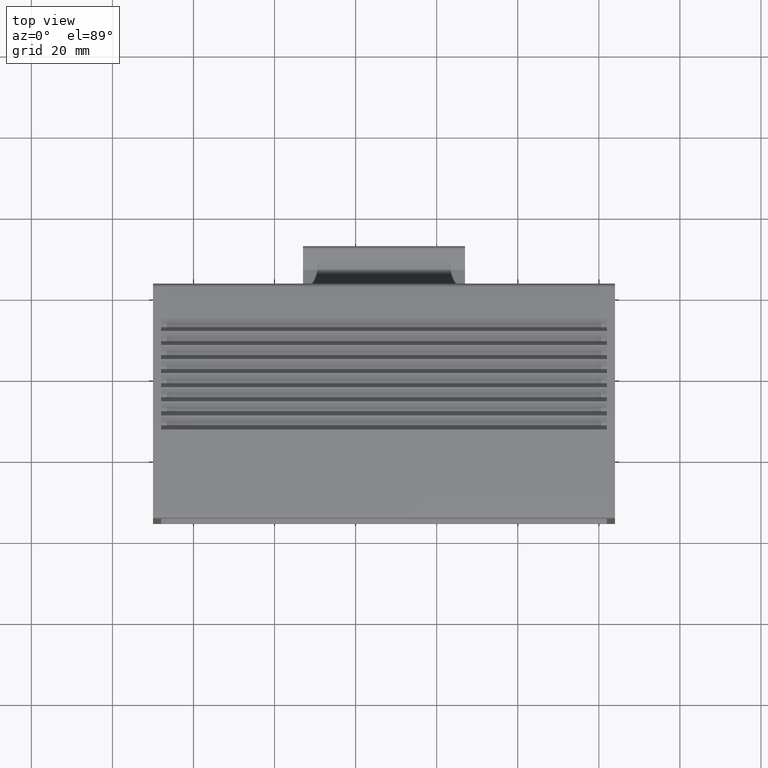
[diagram: clean part render]
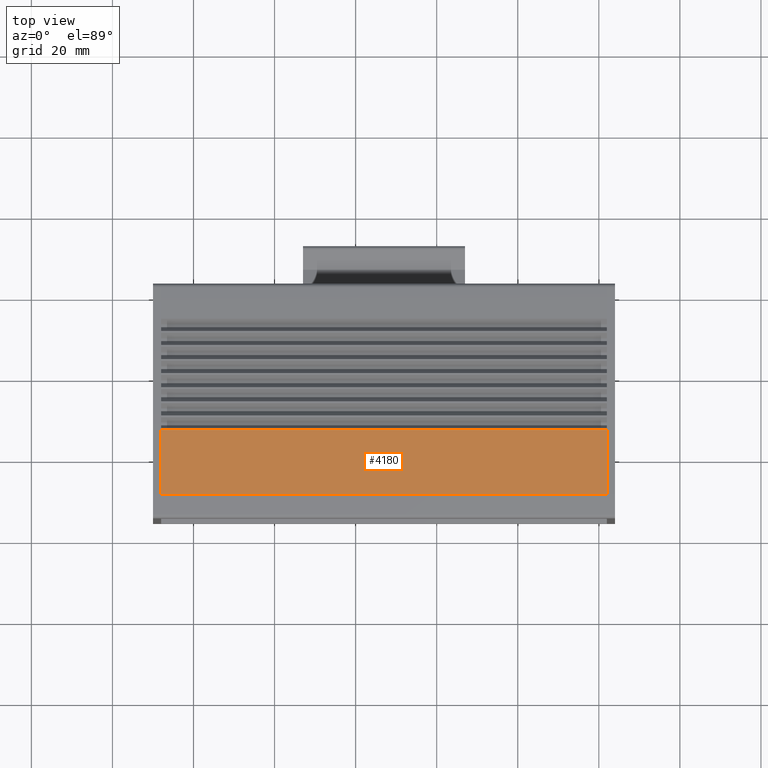
[diagram: same view with one face highlighted and labeled with its STEP entity id]
A machine part, top view. The second image highlights one B-rep face of the part: STEP entity #4180.
In plain terms, the highlighted cylindrical surface (partial cylindrical patch) has radius 400 mm, axis along (-1, -0, 0).
Its self-contained STEP definition (entity closure, byte-faithful):
#2142=CARTESIAN_POINT('',(-49.957093014422568,-4.589066365486417,109.500000000000000));
#2143=VERTEX_POINT('',#2142);
#2150=CARTESIAN_POINT('',(-65.906152948224928,-4.907158484696884,109.500000000000000));
#2151=VERTEX_POINT('',#2150);
#2152=CARTESIAN_POINT('',(-49.957093014422590,-404.589066365486420,109.500000000000000));
#2153=DIRECTION('',(0.0,0.0,-1.0));
#2154=DIRECTION('',(1.0,0.0,0.0));
#2155=AXIS2_PLACEMENT_3D('',#2152,#2153,#2154);
#2156=CIRCLE('',#2155,400.0);
#2157=EDGE_CURVE('',#2151,#2143,#2156,.T.);
#2823=CARTESIAN_POINT('',(-65.906152948224928,-4.907158484696884,-0.500000000000000));
#2824=VERTEX_POINT('',#2823);
#2831=CARTESIAN_POINT('',(-49.957093014422568,-4.589066365486417,-0.500000000000000));
#2832=VERTEX_POINT('',#2831);
#2833=CARTESIAN_POINT('',(-49.957093014422590,-404.589066365486420,-0.500000000000000));
#2834=DIRECTION('',(0.0,0.0,-1.0));
#2835=DIRECTION('',(1.0,0.0,0.0));
#2836=AXIS2_PLACEMENT_3D('',#2833,#2834,#2835);
#2837=CIRCLE('',#2836,400.0);
#2838=EDGE_CURVE('',#2824,#2832,#2837,.T.);
#3293=CARTESIAN_POINT('',(-49.957093014422568,-4.589066365486417,-0.500000000000000));
#3294=DIRECTION('',(0.0,0.0,1.0));
#3295=VECTOR('',#3294,110.0);
#3296=LINE('',#3293,#3295);
#3297=EDGE_CURVE('',#2832,#2143,#3296,.T.);
#3783=CARTESIAN_POINT('',(-65.906152948224928,-4.907158484696884,-0.500000000000000));
#3784=DIRECTION('',(0.0,0.0,1.0));
#3785=VECTOR('',#3784,110.0);
#3786=LINE('',#3783,#3785);
#3787=EDGE_CURVE('',#2824,#2151,#3786,.T.);
#4169=CARTESIAN_POINT('',(-49.957093014422590,-404.589066365486420,-0.500000000000000));
#4170=DIRECTION('',(0.0,0.0,1.0));
#4171=DIRECTION('',(1.0,0.0,0.0));
#4172=AXIS2_PLACEMENT_3D('',#4169,#4170,#4171);
#4173=CYLINDRICAL_SURFACE('',#4172,400.0);
#4174=ORIENTED_EDGE('',*,*,#3787,.T.);
#4175=ORIENTED_EDGE('',*,*,#2157,.T.);
#4176=ORIENTED_EDGE('',*,*,#3297,.F.);
#4177=ORIENTED_EDGE('',*,*,#2838,.F.);
#4178=EDGE_LOOP('',(#4174,#4175,#4176,#4177));
#4179=FACE_OUTER_BOUND('',#4178,.T.);
#4180=ADVANCED_FACE('',(#4179),#4173,.T.);